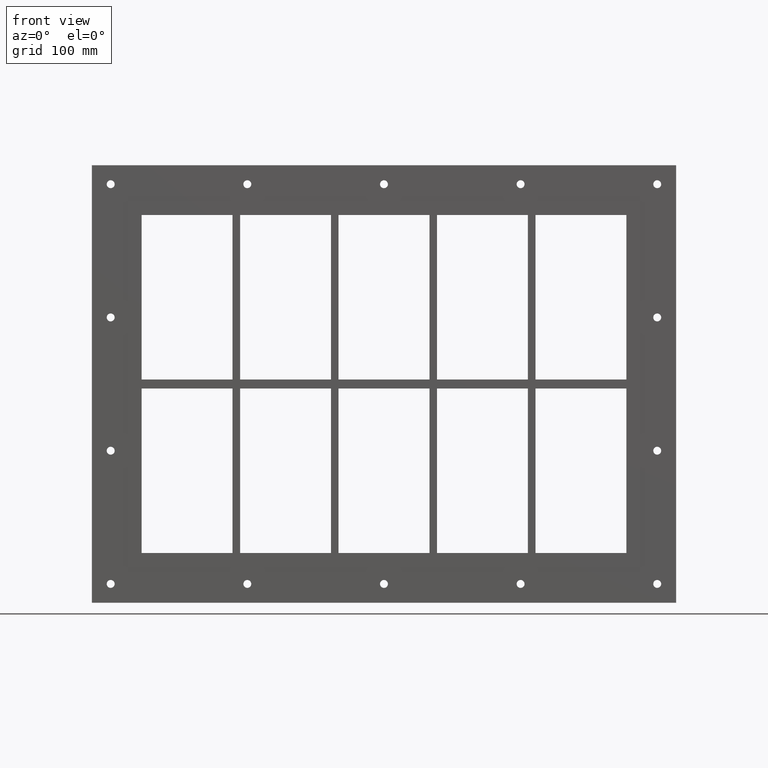
[diagram: clean part render]
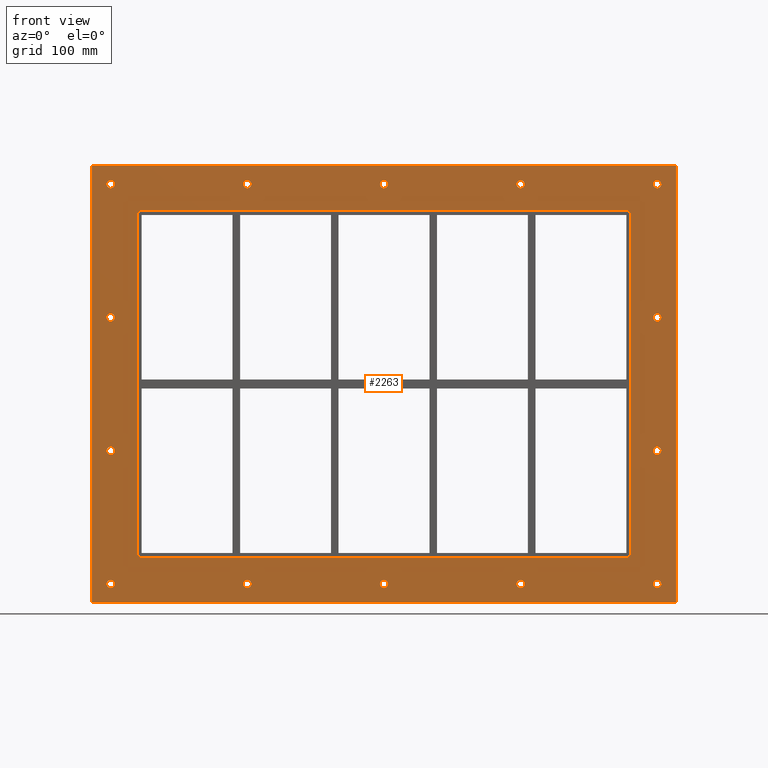
[diagram: same view with one face highlighted and labeled with its STEP entity id]
A machine part, front view. The second image highlights one B-rep face of the part: STEP entity #2263.
In plain terms, the highlighted planar face has unit normal (0, 1, 0).
Its self-contained STEP definition (entity closure, byte-faithful):
#84=CARTESIAN_POINT('',(-357.00000000000017,0.0,-265.0));
#85=VERTEX_POINT('',#84);
#86=CARTESIAN_POINT('',(-362.25000000000017,0.0,-265.0));
#87=DIRECTION('',(0.0,1.0,0.0));
#88=DIRECTION('',(1.0,0.0,0.0));
#89=AXIS2_PLACEMENT_3D('',#86,#87,#88);
#90=CIRCLE('',#89,5.25);
#91=EDGE_CURVE('',#85,#85,#90,.T.);
#112=CARTESIAN_POINT('',(367.39999999999981,0.0,-88.39999999999992));
#113=VERTEX_POINT('',#112);
#114=CARTESIAN_POINT('',(362.14999999999981,0.0,-88.39999999999992));
#115=DIRECTION('',(0.0,1.0,0.0));
#116=DIRECTION('',(1.0,0.0,0.0));
#117=AXIS2_PLACEMENT_3D('',#114,#115,#116);
#118=CIRCLE('',#117,5.25);
#119=EDGE_CURVE('',#113,#113,#118,.T.);
#140=CARTESIAN_POINT('',(-357.00000000000017,0.0,-88.39999999999992));
#141=VERTEX_POINT('',#140);
#142=CARTESIAN_POINT('',(-362.25000000000017,0.0,-88.39999999999992));
#143=DIRECTION('',(0.0,1.0,0.0));
#144=DIRECTION('',(1.0,0.0,0.0));
#145=AXIS2_PLACEMENT_3D('',#142,#143,#144);
#146=CIRCLE('',#145,5.25);
#147=EDGE_CURVE('',#141,#141,#146,.T.);
#168=CARTESIAN_POINT('',(367.39999999999981,0.0,88.200000000000074));
#169=VERTEX_POINT('',#168);
#170=CARTESIAN_POINT('',(362.14999999999981,0.0,88.200000000000074));
#171=DIRECTION('',(0.0,1.0,0.0));
#172=DIRECTION('',(1.0,0.0,0.0));
#173=AXIS2_PLACEMENT_3D('',#170,#171,#172);
#174=CIRCLE('',#173,5.25);
#175=EDGE_CURVE('',#169,#169,#174,.T.);
#196=CARTESIAN_POINT('',(-357.00000000000017,0.0,88.200000000000074));
#197=VERTEX_POINT('',#196);
#198=CARTESIAN_POINT('',(-362.25000000000017,0.0,88.200000000000074));
#199=DIRECTION('',(0.0,1.0,0.0));
#200=DIRECTION('',(1.0,0.0,0.0));
#201=AXIS2_PLACEMENT_3D('',#198,#199,#200);
#202=CIRCLE('',#201,5.25);
#203=EDGE_CURVE('',#197,#197,#202,.T.);
#224=CARTESIAN_POINT('',(-175.90000000000018,0.0,264.80000000000007));
#225=VERTEX_POINT('',#224);
#226=CARTESIAN_POINT('',(-181.15000000000015,0.0,264.80000000000007));
#227=DIRECTION('',(0.0,1.0,0.0));
#228=DIRECTION('',(1.0,0.0,0.0));
#229=AXIS2_PLACEMENT_3D('',#226,#227,#228);
#230=CIRCLE('',#229,5.25);
#231=EDGE_CURVE('',#225,#225,#230,.T.);
#252=CARTESIAN_POINT('',(-175.90000000000018,0.0,-264.99999999999994));
#253=VERTEX_POINT('',#252);
#254=CARTESIAN_POINT('',(-181.15000000000015,0.0,-264.99999999999994));
#255=DIRECTION('',(0.0,1.0,0.0));
#256=DIRECTION('',(1.0,0.0,0.0));
#257=AXIS2_PLACEMENT_3D('',#254,#255,#256);
#258=CIRCLE('',#257,5.25);
#259=EDGE_CURVE('',#253,#253,#258,.T.);
#280=CARTESIAN_POINT('',(5.199999999999818,0.0,264.80000000000007));
#281=VERTEX_POINT('',#280);
#282=CARTESIAN_POINT('',(-0.050000000000168,0.0,264.80000000000007));
#283=DIRECTION('',(0.0,1.0,0.0));
#284=DIRECTION('',(1.0,0.0,0.0));
#285=AXIS2_PLACEMENT_3D('',#282,#283,#284);
#286=CIRCLE('',#285,5.25);
#287=EDGE_CURVE('',#281,#281,#286,.T.);
#308=CARTESIAN_POINT('',(5.199999999999818,0.0,-264.99999999999994));
#309=VERTEX_POINT('',#308);
#310=CARTESIAN_POINT('',(-0.050000000000168,0.0,-264.99999999999994));
#311=DIRECTION('',(0.0,1.0,0.0));
#312=DIRECTION('',(1.0,0.0,0.0));
#313=AXIS2_PLACEMENT_3D('',#310,#311,#312);
#314=CIRCLE('',#313,5.25);
#315=EDGE_CURVE('',#309,#309,#314,.T.);
#336=CARTESIAN_POINT('',(186.29999999999981,0.0,264.80000000000007));
#337=VERTEX_POINT('',#336);
#338=CARTESIAN_POINT('',(181.04999999999984,0.0,264.80000000000007));
#339=DIRECTION('',(0.0,1.0,0.0));
#340=DIRECTION('',(1.0,0.0,0.0));
#341=AXIS2_PLACEMENT_3D('',#338,#339,#340);
#342=CIRCLE('',#341,5.25);
#343=EDGE_CURVE('',#337,#337,#342,.T.);
#364=CARTESIAN_POINT('',(186.29999999999981,0.0,-264.99999999999994));
#365=VERTEX_POINT('',#364);
#366=CARTESIAN_POINT('',(181.04999999999984,0.0,-264.99999999999994));
#367=DIRECTION('',(0.0,1.0,0.0));
#368=DIRECTION('',(1.0,0.0,0.0));
#369=AXIS2_PLACEMENT_3D('',#366,#367,#368);
#370=CIRCLE('',#369,5.25);
#371=EDGE_CURVE('',#365,#365,#370,.T.);
#392=CARTESIAN_POINT('',(367.39999999999981,0.0,-264.99999999999994));
#393=VERTEX_POINT('',#392);
#394=CARTESIAN_POINT('',(362.14999999999981,0.0,-264.99999999999994));
#395=DIRECTION('',(0.0,1.0,0.0));
#396=DIRECTION('',(1.0,0.0,0.0));
#397=AXIS2_PLACEMENT_3D('',#394,#395,#396);
#398=CIRCLE('',#397,5.25);
#399=EDGE_CURVE('',#393,#393,#398,.T.);
#420=CARTESIAN_POINT('',(-357.00000000000017,0.0,264.80000000000007));
#421=VERTEX_POINT('',#420);
#422=CARTESIAN_POINT('',(-362.25000000000017,0.0,264.80000000000007));
#423=DIRECTION('',(0.0,1.0,0.0));
#424=DIRECTION('',(1.0,0.0,0.0));
#425=AXIS2_PLACEMENT_3D('',#422,#423,#424);
#426=CIRCLE('',#425,5.25);
#427=EDGE_CURVE('',#421,#421,#426,.T.);
#448=CARTESIAN_POINT('',(367.39999999999981,0.0,264.80000000000007));
#449=VERTEX_POINT('',#448);
#450=CARTESIAN_POINT('',(362.14999999999981,0.0,264.80000000000007));
#451=DIRECTION('',(0.0,1.0,0.0));
#452=DIRECTION('',(1.0,0.0,0.0));
#453=AXIS2_PLACEMENT_3D('',#450,#451,#452);
#454=CIRCLE('',#453,5.25);
#455=EDGE_CURVE('',#449,#449,#454,.T.);
#2112=CARTESIAN_POINT('',(-3.776971E-014,0.0,2.019631E-014));
#2113=DIRECTION('',(0.0,1.0,0.0));
#2114=DIRECTION('',(0.0,0.0,1.0));
#2115=AXIS2_PLACEMENT_3D('',#2112,#2113,#2114);
#2116=PLANE('',#2115);
#2117=CARTESIAN_POINT('',(-387.25000000000011,0.0,290.0));
#2118=VERTEX_POINT('',#2117);
#2119=CARTESIAN_POINT('',(387.25,0.0,290.0));
#2120=VERTEX_POINT('',#2119);
#2121=CARTESIAN_POINT('',(-387.25000000000011,0.0,290.0));
#2122=DIRECTION('',(1.0,0.0,0.0));
#2123=VECTOR('',#2122,774.50000000000023);
#2124=LINE('',#2121,#2123);
#2125=EDGE_CURVE('',#2118,#2120,#2124,.T.);
#2126=ORIENTED_EDGE('',*,*,#2125,.F.);
#2127=CARTESIAN_POINT('',(-387.25000000000011,0.0,-289.99999999999994));
#2128=VERTEX_POINT('',#2127);
#2129=CARTESIAN_POINT('',(-387.25000000000011,0.0,-289.99999999999994));
#2130=DIRECTION('',(0.0,0.0,1.0));
#2131=VECTOR('',#2130,580.0);
#2132=LINE('',#2129,#2131);
#2133=EDGE_CURVE('',#2128,#2118,#2132,.T.);
#2134=ORIENTED_EDGE('',*,*,#2133,.F.);
#2135=CARTESIAN_POINT('',(387.25,0.0,-289.99999999999994));
#2136=VERTEX_POINT('',#2135);
#2137=CARTESIAN_POINT('',(387.25,0.0,-289.99999999999994));
#2138=DIRECTION('',(-1.0,0.0,0.0));
#2139=VECTOR('',#2138,774.50000000000023);
#2140=LINE('',#2137,#2139);
#2141=EDGE_CURVE('',#2136,#2128,#2140,.T.);
#2142=ORIENTED_EDGE('',*,*,#2141,.F.);
#2143=CARTESIAN_POINT('',(387.25,0.0,290.0));
#2144=DIRECTION('',(0.0,0.0,-1.0));
#2145=VECTOR('',#2144,580.0);
#2146=LINE('',#2143,#2145);
#2147=EDGE_CURVE('',#2120,#2136,#2146,.T.);
#2148=ORIENTED_EDGE('',*,*,#2147,.F.);
#2149=EDGE_LOOP('',(#2126,#2134,#2142,#2148));
#2150=FACE_OUTER_BOUND('',#2149,.T.);
#2151=ORIENTED_EDGE('',*,*,#91,.T.);
#2152=EDGE_LOOP('',(#2151));
#2153=FACE_BOUND('',#2152,.T.);
#2154=ORIENTED_EDGE('',*,*,#119,.T.);
#2155=EDGE_LOOP('',(#2154));
#2156=FACE_BOUND('',#2155,.T.);
#2157=ORIENTED_EDGE('',*,*,#147,.T.);
#2158=EDGE_LOOP('',(#2157));
#2159=FACE_BOUND('',#2158,.T.);
#2160=ORIENTED_EDGE('',*,*,#175,.T.);
#2161=EDGE_LOOP('',(#2160));
#2162=FACE_BOUND('',#2161,.T.);
#2163=ORIENTED_EDGE('',*,*,#203,.T.);
#2164=EDGE_LOOP('',(#2163));
#2165=FACE_BOUND('',#2164,.T.);
#2166=ORIENTED_EDGE('',*,*,#231,.T.);
#2167=EDGE_LOOP('',(#2166));
#2168=FACE_BOUND('',#2167,.T.);
#2169=ORIENTED_EDGE('',*,*,#259,.T.);
#2170=EDGE_LOOP('',(#2169));
#2171=FACE_BOUND('',#2170,.T.);
#2172=ORIENTED_EDGE('',*,*,#287,.T.);
#2173=EDGE_LOOP('',(#2172));
#2174=FACE_BOUND('',#2173,.T.);
#2175=ORIENTED_EDGE('',*,*,#315,.T.);
#2176=EDGE_LOOP('',(#2175));
#2177=FACE_BOUND('',#2176,.T.);
#2178=ORIENTED_EDGE('',*,*,#343,.T.);
#2179=EDGE_LOOP('',(#2178));
#2180=FACE_BOUND('',#2179,.T.);
#2181=ORIENTED_EDGE('',*,*,#371,.T.);
#2182=EDGE_LOOP('',(#2181));
#2183=FACE_BOUND('',#2182,.T.);
#2184=ORIENTED_EDGE('',*,*,#399,.T.);
#2185=EDGE_LOOP('',(#2184));
#2186=FACE_BOUND('',#2185,.T.);
#2187=ORIENTED_EDGE('',*,*,#427,.T.);
#2188=EDGE_LOOP('',(#2187));
#2189=FACE_BOUND('',#2188,.T.);
#2190=ORIENTED_EDGE('',*,*,#455,.T.);
#2191=EDGE_LOOP('',(#2190));
#2192=FACE_BOUND('',#2191,.T.);
#2193=CARTESIAN_POINT('',(-327.25,0.0,-224.0));
#2194=VERTEX_POINT('',#2193);
#2195=CARTESIAN_POINT('',(-321.25,0.0,-230.0));
#2196=VERTEX_POINT('',#2195);
#2197=CARTESIAN_POINT('',(-321.25,0.0,-224.0));
#2198=DIRECTION('',(0.0,-1.0,0.0));
#2199=DIRECTION('',(-0.707106781186543,0.0,-0.707106781186552));
#2200=AXIS2_PLACEMENT_3D('',#2197,#2198,#2199);
#2201=CIRCLE('',#2200,6.000000000000001);
#2202=EDGE_CURVE('',#2194,#2196,#2201,.T.);
#2203=ORIENTED_EDGE('',*,*,#2202,.F.);
#2204=CARTESIAN_POINT('',(-327.25,0.0,224.00000000000006));
#2205=VERTEX_POINT('',#2204);
#2206=CARTESIAN_POINT('',(-327.25,0.0,224.00000000000006));
#2207=DIRECTION('',(0.0,0.0,-1.0));
#2208=VECTOR('',#2207,448.00000000000006);
#2209=LINE('',#2206,#2208);
#2210=EDGE_CURVE('',#2205,#2194,#2209,.T.);
#2211=ORIENTED_EDGE('',*,*,#2210,.F.);
#2212=CARTESIAN_POINT('',(-321.25,0.0,230.00000000000006));
#2213=VERTEX_POINT('',#2212);
#2214=CARTESIAN_POINT('',(-321.25,0.0,224.00000000000006));
#2215=DIRECTION('',(0.0,-1.0,0.0));
#2216=DIRECTION('',(-0.707106781186543,0.0,0.707106781186552));
#2217=AXIS2_PLACEMENT_3D('',#2214,#2215,#2216);
#2218=CIRCLE('',#2217,6.000000000000001);
#2219=EDGE_CURVE('',#2213,#2205,#2218,.T.);
#2220=ORIENTED_EDGE('',*,*,#2219,.F.);
#2221=CARTESIAN_POINT('',(321.25,0.0,230.00000000000006));
#2222=VERTEX_POINT('',#2221);
#2223=CARTESIAN_POINT('',(321.25,0.0,230.00000000000006));
#2224=DIRECTION('',(-1.0,0.0,0.0));
#2225=VECTOR('',#2224,642.5);
#2226=LINE('',#2223,#2225);
#2227=EDGE_CURVE('',#2222,#2213,#2226,.T.);
#2228=ORIENTED_EDGE('',*,*,#2227,.F.);
#2229=CARTESIAN_POINT('',(327.25,0.0,224.00000000000006));
#2230=VERTEX_POINT('',#2229);
#2231=CARTESIAN_POINT('',(321.25,0.0,224.00000000000006));
#2232=DIRECTION('',(0.0,-1.0,0.0));
#2233=DIRECTION('',(0.707106781186543,0.0,0.707106781186552));
#2234=AXIS2_PLACEMENT_3D('',#2231,#2232,#2233);
#2235=CIRCLE('',#2234,6.000000000000001);
#2236=EDGE_CURVE('',#2230,#2222,#2235,.T.);
#2237=ORIENTED_EDGE('',*,*,#2236,.F.);
#2238=CARTESIAN_POINT('',(327.25,0.0,-224.0));
#2239=VERTEX_POINT('',#2238);
#2240=CARTESIAN_POINT('',(327.25,0.0,-224.0));
#2241=DIRECTION('',(0.0,0.0,1.0));
#2242=VECTOR('',#2241,448.00000000000006);
#2243=LINE('',#2240,#2242);
#2244=EDGE_CURVE('',#2239,#2230,#2243,.T.);
#2245=ORIENTED_EDGE('',*,*,#2244,.F.);
#2246=CARTESIAN_POINT('',(321.25,0.0,-230.0));
#2247=VERTEX_POINT('',#2246);
#2248=CARTESIAN_POINT('',(321.25,0.0,-224.0));
#2249=DIRECTION('',(0.0,-1.0,0.0));
#2250=DIRECTION('',(0.707106781186543,0.0,-0.707106781186552));
#2251=AXIS2_PLACEMENT_3D('',#2248,#2249,#2250);
#2252=CIRCLE('',#2251,6.000000000000001);
#2253=EDGE_CURVE('',#2247,#2239,#2252,.T.);
#2254=ORIENTED_EDGE('',*,*,#2253,.F.);
#2255=CARTESIAN_POINT('',(-321.25,0.0,-230.0));
#2256=DIRECTION('',(1.0,0.0,0.0));
#2257=VECTOR('',#2256,642.5);
#2258=LINE('',#2255,#2257);
#2259=EDGE_CURVE('',#2196,#2247,#2258,.T.);
#2260=ORIENTED_EDGE('',*,*,#2259,.F.);
#2261=EDGE_LOOP('',(#2203,#2211,#2220,#2228,#2237,#2245,#2254,#2260));
#2262=FACE_BOUND('',#2261,.T.);
#2263=ADVANCED_FACE('',(#2150,#2153,#2156,#2159,#2162,#2165,#2168,#2171,#2174,#2177,#2180,#2183,#2186,#2189,#2192,#2262),#2116,.F.);